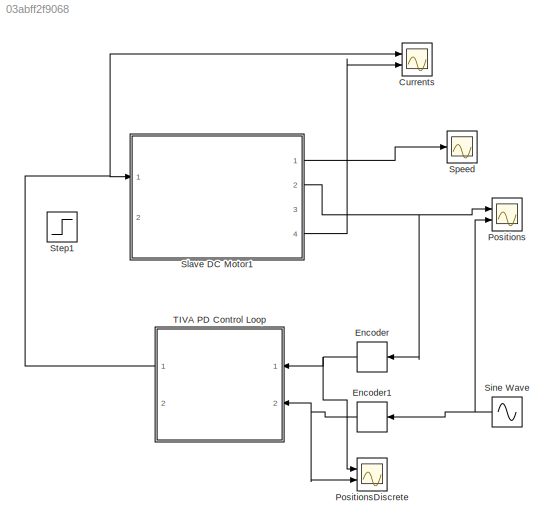
MODEL slx_03abff2f9068
KIND model
CONFIG AbsTol = auto
CONFIG EnableMultiTasking = off
CONFIG FixedStep = auto
CONFIG MaxStep = auto
CONFIG MinStep = auto
CONFIG RelTol = 1e-3
CONFIG SampleTimeConstraint = Unconstrained
CONFIG Solver = VariableStepAuto
CONFIG SolverName = VariableStepAuto
CONFIG StartTime = 0.0
CONFIG StopTime = 10
BLOCK [Scope] Currents
  NumInputPorts = 2
  Ports = [2]
  ScopeSpecificationString = Simulink.scopes.TimeScopeBlockCfg('CurrentConfiguration', extmgr.ConfigurationSet(extmgr.Configuration('Core','General UI',true),extmgr.Configuration('Core','Source UI',true),extmgr.Configuration('Sources','WiredSimulink',true),extmgr.Configuration('Visuals','Time Domain',true,'SerializedDisplays',{struct('MinYLimReal','-0.03023','MaxYLimReal','0.03307','YLabelReal','','MinYLimMag','0.00000','MaxY...<+1397ch>
BLOCK [Quantizer] Encoder
  QuantizationInterval = (2*pi)/8192
BLOCK [Quantizer] Encoder1
  QuantizationInterval = (2*pi)/8192
BLOCK [Scope] Positions
  NumInputPorts = 2
  Ports = [2]
  ScopeSpecificationString = Simulink.scopes.TimeScopeBlockCfg('CurrentConfiguration', extmgr.ConfigurationSet(extmgr.Configuration('Core','General UI',true),extmgr.Configuration('Core','Source UI',true),extmgr.Configuration('Sources','WiredSimulink',true,'DataLoggingVariableName','ScopeData2'),extmgr.Configuration('Visuals','Time Domain',true,'SerializedDisplays',{struct('MinYLimReal','-1.28216','MaxYLimReal','1.28546','YLab...<+1423ch>
BLOCK [Scope] PositionsDiscrete
  NumInputPorts = 2
  Ports = [2]
  ScopeSpecificationString = Simulink.scopes.TimeScopeBlockCfg('CurrentConfiguration', extmgr.ConfigurationSet(extmgr.Configuration('Core','General UI',true),extmgr.Configuration('Core','Source UI',true),extmgr.Configuration('Sources','WiredSimulink',true,'DataLoggingVariableName','ScopeData3'),extmgr.Configuration('Visuals','Time Domain',true,'SerializedDisplays',{struct('MinYLimReal','-1.28222','MaxYLimReal','1.28528','YLab...<+1411ch>
BLOCK [Sin] Sine Wave
  Frequency = 5
  Ports = [0, 1]
  SampleTime = 0
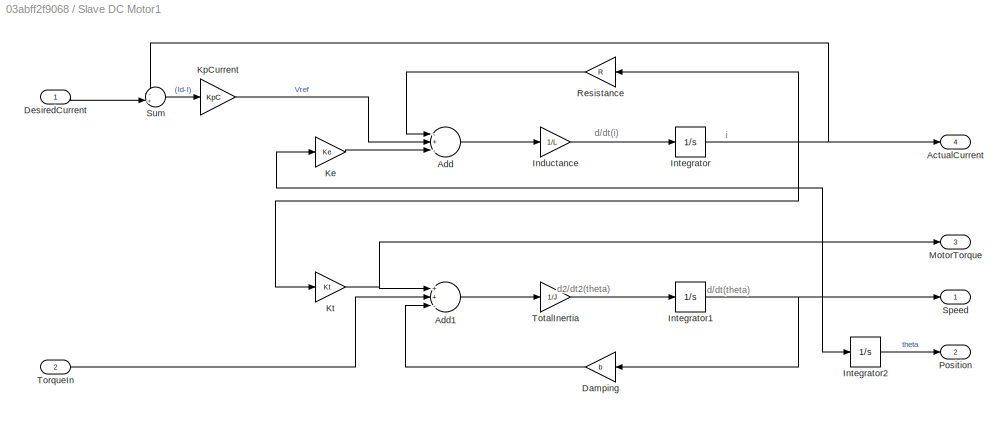
BLOCK [SubSystem] Slave DC Motor1
  Ports = [2, 4]
  RequestExecContextInheritance = off
  Variant = off
BLOCK [Outport] Slave DC Motor1/ActualCurrent
  IconDisplay = Port number
  Port = 4
BLOCK [Sum] Slave DC Motor1/Add
  InputSameDT = off
  Inputs = -+-
  OutDataTypeStr = Inherit: Inherit via internal rule
  Ports = [3, 1]
  SaturateOnIntegerOverflow = off
BLOCK [Sum] Slave DC Motor1/Add1
  InputSameDT = off
  Inputs = ++-
  OutDataTypeStr = Inherit: Inherit via internal rule
  Ports = [3, 1]
  SaturateOnIntegerOverflow = off
BLOCK [Gain] Slave DC Motor1/Damping
  Gain = b
  OutDataTypeStr = Inherit: Inherit via internal rule
  ParamDataTypeStr = Inherit: Inherit via internal rule
  SaturateOnIntegerOverflow = off
BLOCK [Inport] Slave DC Motor1/DesiredCurrent
  IconDisplay = Port number
BLOCK [Gain] Slave DC Motor1/Inductance
  Gain = 1/L
  OutDataTypeStr = Inherit: Inherit via internal rule
  ParamDataTypeStr = Inherit: Inherit via internal rule
  SaturateOnIntegerOverflow = off
BLOCK [Integrator] Slave DC Motor1/Integrator
  Ports = [1, 1]
BLOCK [Integrator] Slave DC Motor1/Integrator1
  Ports = [1, 1]
BLOCK [Integrator] Slave DC Motor1/Integrator2
  Ports = [1, 1]
BLOCK [Gain] Slave DC Motor1/Ke
  Gain = Ke
  OutDataTypeStr = Inherit: Inherit via internal rule
  ParamDataTypeStr = Inherit: Inherit via internal rule
  SaturateOnIntegerOverflow = off
BLOCK [Gain] Slave DC Motor1/KpCurrent
  Gain = KpC
  OutDataTypeStr = Inherit: Inherit via internal rule
  ParamDataTypeStr = Inherit: Inherit via internal rule
  SaturateOnIntegerOverflow = off
BLOCK [Gain] Slave DC Motor1/Kt
  Gain = Kt
  OutDataTypeStr = Inherit: Inherit via internal rule
  ParamDataTypeStr = Inherit: Inherit via internal rule
  SaturateOnIntegerOverflow = off
BLOCK [Outport] Slave DC Motor1/MotorTorque
  IconDisplay = Port number
  Port = 3
BLOCK [Outport] Slave DC Motor1/Position
  IconDisplay = Port number
  Port = 2
BLOCK [Gain] Slave DC Motor1/Resistance
  Gain = R
  OutDataTypeStr = Inherit: Inherit via internal rule
  ParamDataTypeStr = Inherit: Inherit via internal rule
  SaturateOnIntegerOverflow = off
BLOCK [Outport] Slave DC Motor1/Speed
  IconDisplay = Port number
BLOCK [Sum] Slave DC Motor1/Sum
  IconShape = round
  InputSameDT = off
  Inputs = -+|
  OutDataTypeStr = Inherit: Inherit via internal rule
  Ports = [2, 1]
  SaturateOnIntegerOverflow = off
BLOCK [Inport] Slave DC Motor1/TorqueIn
  IconDisplay = Port number
  Port = 2
BLOCK [Gain] Slave DC Motor1/TotalInertia
  Gain = 1/J
  OutDataTypeStr = Inherit: Inherit via internal rule
  ParamDataTypeStr = Inherit: Inherit via internal rule
  SaturateOnIntegerOverflow = off
BLOCK [Scope] Speed
  NumInputPorts = 1
  Ports = [1]
  ScopeSpecificationString = Simulink.scopes.TimeScopeBlockCfg('CurrentConfiguration', extmgr.ConfigurationSet(extmgr.Configuration('Core','General UI',true),extmgr.Configuration('Core','Source UI',true),extmgr.Configuration('Sources','WiredSimulink',true,'DataLoggingVariableName','ScopeData1'),extmgr.Configuration('Visuals','Time Domain',true,'SerializedDisplays',{struct('MinYLimReal','-6.60387','MaxYLimReal','6.97701','YLab...<+1409ch>
BLOCK [Step] Step1
  After = -0.02
  SampleTime = 0
  Time = 2
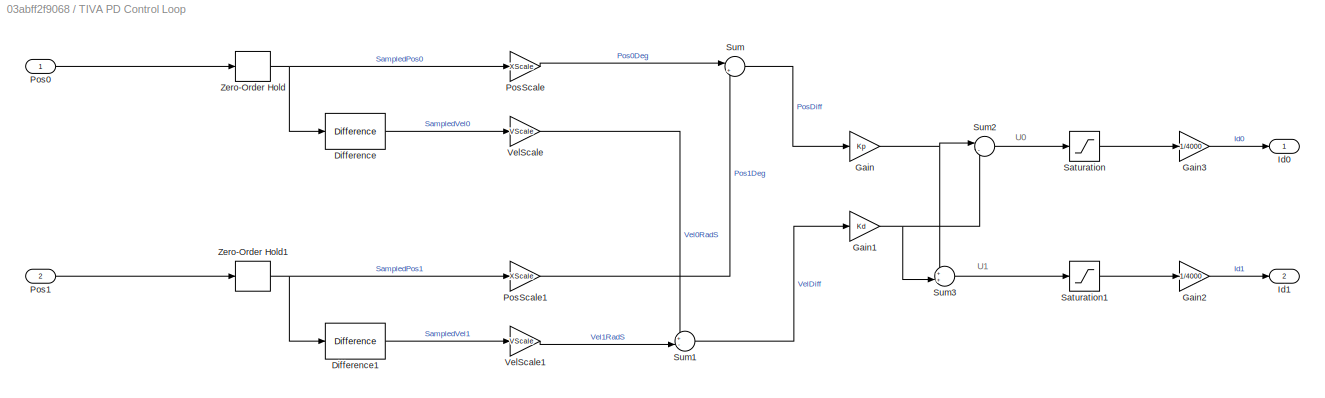
BLOCK [SubSystem] TIVA PD Control Loop
  Ports = [2, 2]
  RequestExecContextInheritance = off
  Variant = off
BLOCK [Reference] TIVA PD Control Loop/Difference  REF=simulink/Discrete/Difference
  Ports = [1, 1]
  SourceBlock = simulink/Discrete/Difference
  SourceProductBaseCode = SL
  SourceProductName = Simulink
  SourceType = Difference
BLOCK [Reference] TIVA PD Control Loop/Difference1  REF=simulink/Discrete/Difference
  Ports = [1, 1]
  SourceBlock = simulink/Discrete/Difference
  SourceProductBaseCode = SL
  SourceProductName = Simulink
  SourceType = Difference
BLOCK [Gain] TIVA PD Control Loop/Gain
  Gain = Kp
  OutDataTypeStr = Inherit: Inherit via internal rule
  ParamDataTypeStr = Inherit: Inherit via internal rule
  SaturateOnIntegerOverflow = off
BLOCK [Gain] TIVA PD Control Loop/Gain1
  Gain = Kd
  OutDataTypeStr = Inherit: Inherit via internal rule
  ParamDataTypeStr = Inherit: Inherit via internal rule
  SaturateOnIntegerOverflow = off
BLOCK [Gain] TIVA PD Control Loop/Gain2
  Gain = 1/4000
  OutDataTypeStr = Inherit: Inherit via internal rule
  ParamDataTypeStr = Inherit: Inherit via internal rule
  SaturateOnIntegerOverflow = off
BLOCK [Gain] TIVA PD Control Loop/Gain3
  Gain = 1/4000
  OutDataTypeStr = Inherit: Inherit via internal rule
  ParamDataTypeStr = Inherit: Inherit via internal rule
  SaturateOnIntegerOverflow = off
BLOCK [Outport] TIVA PD Control Loop/Id0
  IconDisplay = Port number
BLOCK [Outport] TIVA PD Control Loop/Id1
  IconDisplay = Port number
  Port = 2
BLOCK [Inport] TIVA PD Control Loop/Pos0
  IconDisplay = Port number
BLOCK [Inport] TIVA PD Control Loop/Pos1
  IconDisplay = Port number
  Port = 2
BLOCK [Gain] TIVA PD Control Loop/PosScale
  Gain = XScale
  OutDataTypeStr = Inherit: Inherit via internal rule
  ParamDataTypeStr = Inherit: Inherit via internal rule
  SaturateOnIntegerOverflow = off
BLOCK [Gain] TIVA PD Control Loop/PosScale1
  Gain = XScale
  OutDataTypeStr = Inherit: Inherit via internal rule
  ParamDataTypeStr = Inherit: Inherit via internal rule
  SaturateOnIntegerOverflow = off
BLOCK [Saturate] TIVA PD Control Loop/Saturation
  InputPortMap = u0
  LowerLimit = -4000
  Ports = [1, 1]
  UpperLimit = 4000
BLOCK [Saturate] TIVA PD Control Loop/Saturation1
  InputPortMap = u0
  LowerLimit = -4000
  Ports = [1, 1]
  UpperLimit = 4000
BLOCK [Sum] TIVA PD Control Loop/Sum
  IconShape = round
  InputSameDT = off
  Inputs = |+-
  OutDataTypeStr = Inherit: Inherit via internal rule
  Ports = [2, 1]
  SaturateOnIntegerOverflow = off
BLOCK [Sum] TIVA PD Control Loop/Sum1
  IconShape = round
  InputSameDT = off
  Inputs = +-|
  OutDataTypeStr = Inherit: Inherit via internal rule
  Ports = [2, 1]
  SaturateOnIntegerOverflow = off
BLOCK [Sum] TIVA PD Control Loop/Sum2
  IconShape = round
  InputSameDT = off
  Inputs = |--
  OutDataTypeStr = Inherit: Inherit via internal rule
  Ports = [2, 1]
  SaturateOnIntegerOverflow = off
BLOCK [Sum] TIVA PD Control Loop/Sum3
  IconShape = round
  InputSameDT = off
  Inputs = ++|
  OutDataTypeStr = Inherit: Inherit via internal rule
  Ports = [2, 1]
  SaturateOnIntegerOverflow = off
BLOCK [Gain] TIVA PD Control Loop/VelScale
  Gain = VScale
  OutDataTypeStr = Inherit: Inherit via internal rule
  ParamDataTypeStr = Inherit: Inherit via internal rule
  SaturateOnIntegerOverflow = off
BLOCK [Gain] TIVA PD Control Loop/VelScale1
  Gain = VScale
  OutDataTypeStr = Inherit: Inherit via internal rule
  ParamDataTypeStr = Inherit: Inherit via internal rule
  SaturateOnIntegerOverflow = off
BLOCK [ZeroOrderHold] TIVA PD Control Loop/Zero-Order Hold
  SampleTime = Tcontrol
BLOCK [ZeroOrderHold] TIVA PD Control Loop/Zero-Order Hold1
  SampleTime = Tcontrol
ANNOTATION Slave DC Motor1: d/dt(i)
ANNOTATION Slave DC Motor1: d/dt(theta)
ANNOTATION Slave DC Motor1: d2/dt2(theta)
ANNOTATION Slave DC Motor1: i
ANNOTATION TIVA PD Control Loop: U0
ANNOTATION TIVA PD Control Loop: U1
NET Encoder1:1 -> PositionsDiscrete:2, TIVA PD Control Loop:2
NET Encoder:1 -> PositionsDiscrete:1, TIVA PD Control Loop:1
NET Sine Wave:1 -> Encoder1:1, Positions:2
LINE Slave DC Motor1/Add1:1 -> Slave DC Motor1/TotalInertia:1
LINE Slave DC Motor1/Add:1 -> Slave DC Motor1/Inductance:1
LINE Slave DC Motor1/Damping:1 -> Slave DC Motor1/Add1:3
LINE Slave DC Motor1/DesiredCurrent:1 -> Slave DC Motor1/Sum:2
LINE Slave DC Motor1/Inductance:1 -> Slave DC Motor1/Integrator:1
NET Slave DC Motor1/Integrator1:1 -> Slave DC Motor1/Damping:1, Slave DC Motor1/Integrator2:1, Slave DC Motor1/Ke:1, Slave DC Motor1/Speed:1
LINE Slave DC Motor1/Integrator2:1 -> Slave DC Motor1/Position:1
NET Slave DC Motor1/Integrator:1 -> Slave DC Motor1/ActualCurrent:1, Slave DC Motor1/Kt:1, Slave DC Motor1/Resistance:1, Slave DC Motor1/Sum:1
LINE Slave DC Motor1/Ke:1 -> Slave DC Motor1/Add:3
LINE Slave DC Motor1/KpCurrent:1 -> Slave DC Motor1/Add:2
NET Slave DC Motor1/Kt:1 -> Slave DC Motor1/Add1:1, Slave DC Motor1/MotorTorque:1
LINE Slave DC Motor1/Resistance:1 -> Slave DC Motor1/Add:1
LINE Slave DC Motor1/Sum:1 -> Slave DC Motor1/KpCurrent:1
LINE Slave DC Motor1/TorqueIn:1 -> Slave DC Motor1/Add1:2
LINE Slave DC Motor1/TotalInertia:1 -> Slave DC Motor1/Integrator1:1
LINE Slave DC Motor1:1 -> Speed:1
NET Slave DC Motor1:2 -> Encoder:1, Positions:1
LINE Slave DC Motor1:4 -> Currents:2
LINE TIVA PD Control Loop/Difference1:1 -> TIVA PD Control Loop/VelScale1:1
LINE TIVA PD Control Loop/Difference:1 -> TIVA PD Control Loop/VelScale:1
NET TIVA PD Control Loop/Gain1:1 -> TIVA PD Control Loop/Sum2:2, TIVA PD Control Loop/Sum3:2
LINE TIVA PD Control Loop/Gain2:1 -> TIVA PD Control Loop/Id1:1
LINE TIVA PD Control Loop/Gain3:1 -> TIVA PD Control Loop/Id0:1
NET TIVA PD Control Loop/Gain:1 -> TIVA PD Control Loop/Sum2:1, TIVA PD Control Loop/Sum3:1
LINE TIVA PD Control Loop/Pos0:1 -> TIVA PD Control Loop/Zero-Order Hold:1
LINE TIVA PD Control Loop/Pos1:1 -> TIVA PD Control Loop/Zero-Order Hold1:1
LINE TIVA PD Control Loop/PosScale1:1 -> TIVA PD Control Loop/Sum:2
LINE TIVA PD Control Loop/PosScale:1 -> TIVA PD Control Loop/Sum:1
LINE TIVA PD Control Loop/Saturation1:1 -> TIVA PD Control Loop/Gain2:1
LINE TIVA PD Control Loop/Saturation:1 -> TIVA PD Control Loop/Gain3:1
LINE TIVA PD Control Loop/Sum1:1 -> TIVA PD Control Loop/Gain1:1
LINE TIVA PD Control Loop/Sum2:1 -> TIVA PD Control Loop/Saturation:1
LINE TIVA PD Control Loop/Sum3:1 -> TIVA PD Control Loop/Saturation1:1
LINE TIVA PD Control Loop/Sum:1 -> TIVA PD Control Loop/Gain:1
LINE TIVA PD Control Loop/VelScale1:1 -> TIVA PD Control Loop/Sum1:2
LINE TIVA PD Control Loop/VelScale:1 -> TIVA PD Control Loop/Sum1:1
NET TIVA PD Control Loop/Zero-Order Hold1:1 -> TIVA PD Control Loop/Difference1:1, TIVA PD Control Loop/PosScale1:1
NET TIVA PD Control Loop/Zero-Order Hold:1 -> TIVA PD Control Loop/Difference:1, TIVA PD Control Loop/PosScale:1
NET TIVA PD Control Loop:1 -> Currents:1, Slave DC Motor1:1
note: NET lines group one-source signal fan-out (src -> all destinations, sorted); 1:1 wires keep LINE
